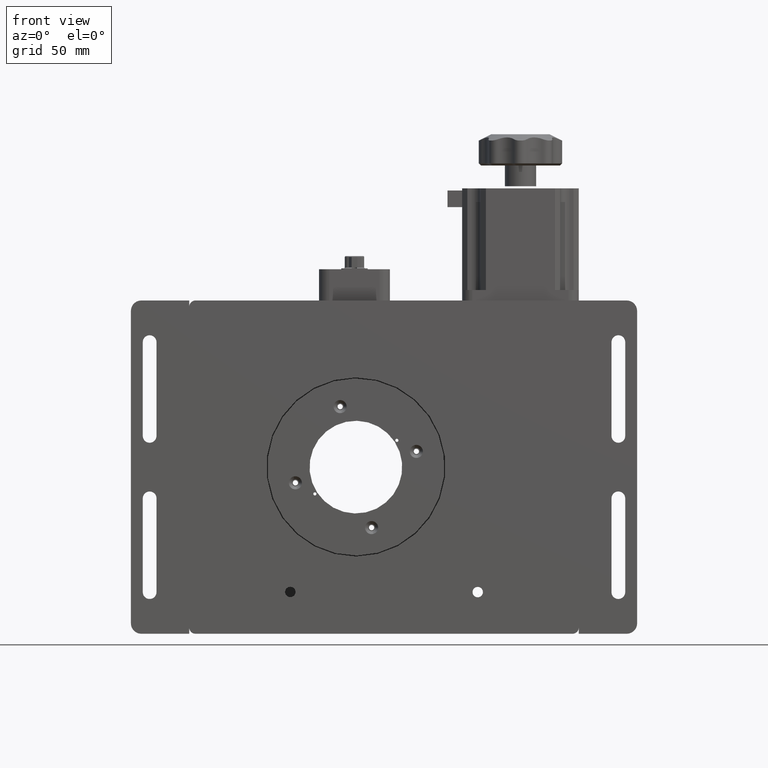
[diagram: clean part render]
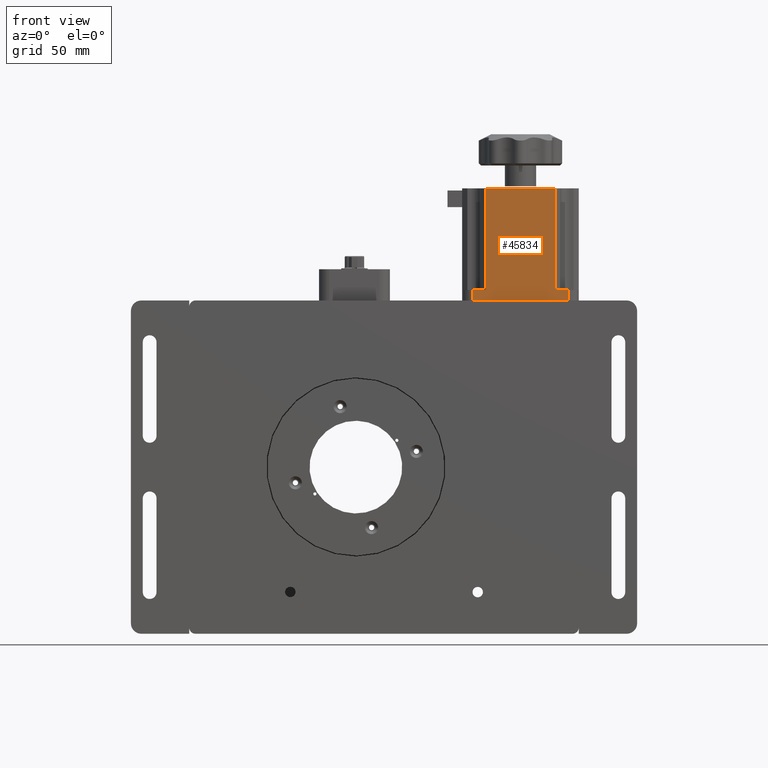
[diagram: same view with one face highlighted and labeled with its STEP entity id]
A machine part, front view. The second image highlights one B-rep face of the part: STEP entity #45834.
In plain terms, the highlighted planar face has unit normal (-0, 1, 0).
Its self-contained STEP definition (entity closure, byte-faithful):
#1532 = LINE ( 'NONE', #85827, #62124 ) ;
#3453 = EDGE_LOOP ( 'NONE', ( #47960, #50394, #54408, #79304, #62596, #46068, #12672, #101377 ) ) ;
#12187 = VERTEX_POINT ( 'NONE', #37128 ) ;
#12672 = ORIENTED_EDGE ( 'NONE', *, *, #99324, .F. ) ;
#13700 = DIRECTION ( 'NONE',  ( -2.775557561562891400E-016, 1.000000000000000000, 6.319003473856956400E-017 ) ) ;
#14075 = VERTEX_POINT ( 'NONE', #102190 ) ;
#14535 = VECTOR ( 'NONE', #90493, 1000.000000000000000 ) ;
#15883 = DIRECTION ( 'NONE',  ( -1.000000000000000000, -2.775557561562891400E-016, 1.641121256918013300E-017 ) ) ;
#17890 = VECTOR ( 'NONE', #57955, 1000.000000000000000 ) ;
#19928 = CARTESIAN_POINT ( 'NONE',  ( 224.4999999999999400, -5.000000000000042600, 133.7999999999999800 ) ) ;
#25723 = EDGE_CURVE ( 'NONE', #12187, #14075, #96708, .T. ) ;
#26054 = VERTEX_POINT ( 'NONE', #76040 ) ;
#26630 = EDGE_CURVE ( 'NONE', #14075, #53448, #75000, .T. ) ;
#27384 = CARTESIAN_POINT ( 'NONE',  ( 235.9299999999999500, -5.000000000000032000, 85.00000000000002800 ) ) ;
#27401 = DIRECTION ( 'NONE',  ( -1.641121256918013000E-017, 6.319003473856955200E-017, -1.000000000000000000 ) ) ;
#31139 = VECTOR ( 'NONE', #52773, 1000.000000000000000 ) ;
#31582 = LINE ( 'NONE', #68504, #92200 ) ;
#31661 = EDGE_CURVE ( 'NONE', #26054, #79877, #73372, .T. ) ;
#32696 = CARTESIAN_POINT ( 'NONE',  ( 224.4999999999999400, -5.000000000000039100, 85.00000000000002800 ) ) ;
#36998 = CARTESIAN_POINT ( 'NONE',  ( 224.4999999999999400, -5.000000000000039100, 80.00000000000009900 ) ) ;
#37128 = CARTESIAN_POINT ( 'NONE',  ( 269.0699999999999400, -5.000000000000042600, 133.7999999999999800 ) ) ;
#43426 = CARTESIAN_POINT ( 'NONE',  ( 229.4999999999999400, -5.000000000000053300, 85.00000000000002800 ) ) ;
#44705 = DIRECTION ( 'NONE',  ( 1.641121256918013000E-017, -6.319003473856955200E-017, 1.000000000000000000 ) ) ;
#45214 = DIRECTION ( 'NONE',  ( -1.000000000000000000, -2.775557561562891400E-016, 1.641121256918013300E-017 ) ) ;
#45834 = ADVANCED_FACE ( 'NONE', ( #96960 ), #78960, .F. ) ;
#46068 = ORIENTED_EDGE ( 'NONE', *, *, #80042, .T. ) ;
#46431 = VERTEX_POINT ( 'NONE', #73737 ) ;
#47960 = ORIENTED_EDGE ( 'NONE', *, *, #31661, .T. ) ;
#48828 = VERTEX_POINT ( 'NONE', #43426 ) ;
#49387 = CARTESIAN_POINT ( 'NONE',  ( 275.4999999999999400, -5.000000000000024900, 80.00000000000004300 ) ) ;
#50394 = ORIENTED_EDGE ( 'NONE', *, *, #102666, .T. ) ;
#52773 = DIRECTION ( 'NONE',  ( -1.641121256918013000E-017, 6.319003473856955200E-017, -1.000000000000000000 ) ) ;
#53448 = VERTEX_POINT ( 'NONE', #27384 ) ;
#54012 = VECTOR ( 'NONE', #15883, 1000.000000000000000 ) ;
#54408 = ORIENTED_EDGE ( 'NONE', *, *, #25723, .T. ) ;
#55843 = CARTESIAN_POINT ( 'NONE',  ( 229.4999999999999400, -5.000000000000049700, 80.00000000000009900 ) ) ;
#57432 = CARTESIAN_POINT ( 'NONE',  ( 269.0699999999999400, -5.000000000000039100, 85.00000000000002800 ) ) ;
#57955 = DIRECTION ( 'NONE',  ( -1.000000000000000000, -2.775557561562891400E-016, 1.641121256918013300E-017 ) ) ;
#60984 = VECTOR ( 'NONE', #45214, 1000.000000000000000 ) ;
#61735 = LINE ( 'NONE', #32696, #17890 ) ;
#61827 = CARTESIAN_POINT ( 'NONE',  ( 235.9299999999999500, -5.000000000000032000, 85.00000000000002800 ) ) ;
#62124 = VECTOR ( 'NONE', #44705, 1000.000000000000000 ) ;
#62596 = ORIENTED_EDGE ( 'NONE', *, *, #101507, .T. ) ;
#63136 = CARTESIAN_POINT ( 'NONE',  ( 224.4999999999999400, -5.000000000000039100, 80.00000000000009900 ) ) ;
#68504 = CARTESIAN_POINT ( 'NONE',  ( 229.4999999999999400, -5.000000000000049700, 80.00000000000009900 ) ) ;
#71378 = DIRECTION ( 'NONE',  ( -1.641121256918013000E-017, 6.319003473856956400E-017, -1.000000000000000000 ) ) ;
#72810 = EDGE_CURVE ( 'NONE', #46431, #26054, #102229, .T. ) ;
#73372 = LINE ( 'NONE', #73524, #54012 ) ;
#73524 = CARTESIAN_POINT ( 'NONE',  ( 224.4999999999999400, -5.000000000000039100, 85.00000000000002800 ) ) ;
#73737 = CARTESIAN_POINT ( 'NONE',  ( 275.4999999999999400, -5.000000000000024900, 80.00000000000004300 ) ) ;
#75000 = LINE ( 'NONE', #61827, #31139 ) ;
#76040 = CARTESIAN_POINT ( 'NONE',  ( 275.4999999999999400, -5.000000000000024900, 85.00000000000002800 ) ) ;
#78960 = PLANE ( 'NONE',  #103284 ) ;
#79304 = ORIENTED_EDGE ( 'NONE', *, *, #26630, .T. ) ;
#79877 = VERTEX_POINT ( 'NONE', #57432 ) ;
#80042 = EDGE_CURVE ( 'NONE', #48828, #88125, #31582, .T. ) ;
#85477 = LINE ( 'NONE', #36998, #60984 ) ;
#85827 = CARTESIAN_POINT ( 'NONE',  ( 269.0699999999999400, -5.000000000000039100, 80.00000000000004300 ) ) ;
#85884 = DIRECTION ( 'NONE',  ( -1.000000000000000000, -2.775557561562891400E-016, 1.641121256918013300E-017 ) ) ;
#88125 = VERTEX_POINT ( 'NONE', #55843 ) ;
#90493 = DIRECTION ( 'NONE',  ( 1.641121256918013000E-017, -6.319003473856955200E-017, 1.000000000000000000 ) ) ;
#91543 = VECTOR ( 'NONE', #85884, 1000.000000000000000 ) ;
#92200 = VECTOR ( 'NONE', #27401, 1000.000000000000000 ) ;
#96708 = LINE ( 'NONE', #19928, #91543 ) ;
#96960 = FACE_OUTER_BOUND ( 'NONE', #3453, .T. ) ;
#99324 = EDGE_CURVE ( 'NONE', #46431, #88125, #85477, .T. ) ;
#101377 = ORIENTED_EDGE ( 'NONE', *, *, #72810, .T. ) ;
#101507 = EDGE_CURVE ( 'NONE', #53448, #48828, #61735, .T. ) ;
#102190 = CARTESIAN_POINT ( 'NONE',  ( 235.9299999999999500, -5.000000000000035500, 133.7999999999999800 ) ) ;
#102229 = LINE ( 'NONE', #49387, #14535 ) ;
#102666 = EDGE_CURVE ( 'NONE', #79877, #12187, #1532, .T. ) ;
#103284 = AXIS2_PLACEMENT_3D ( 'NONE', #63136, #13700, #71378 ) ;